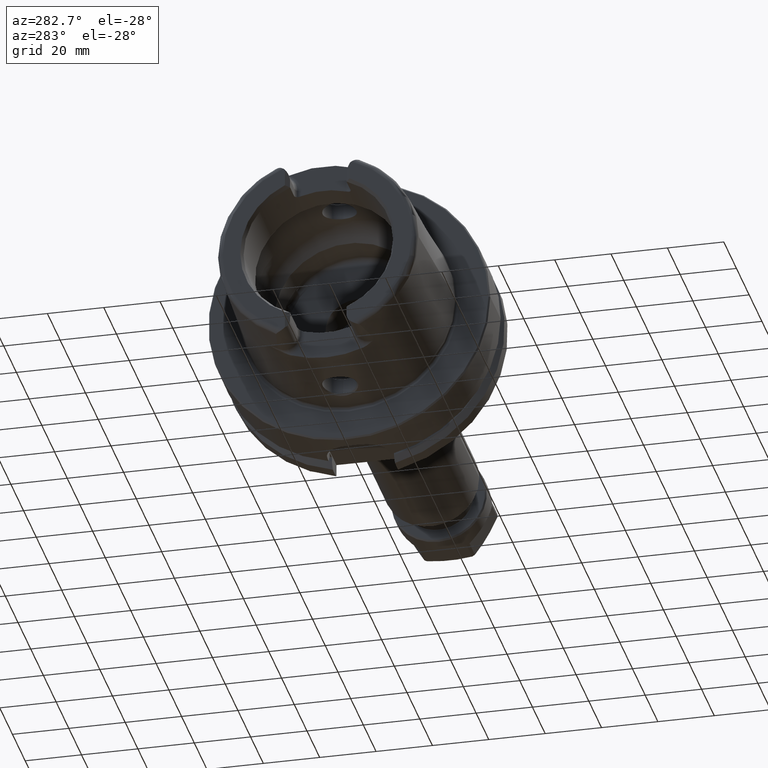
[diagram: clean part render]
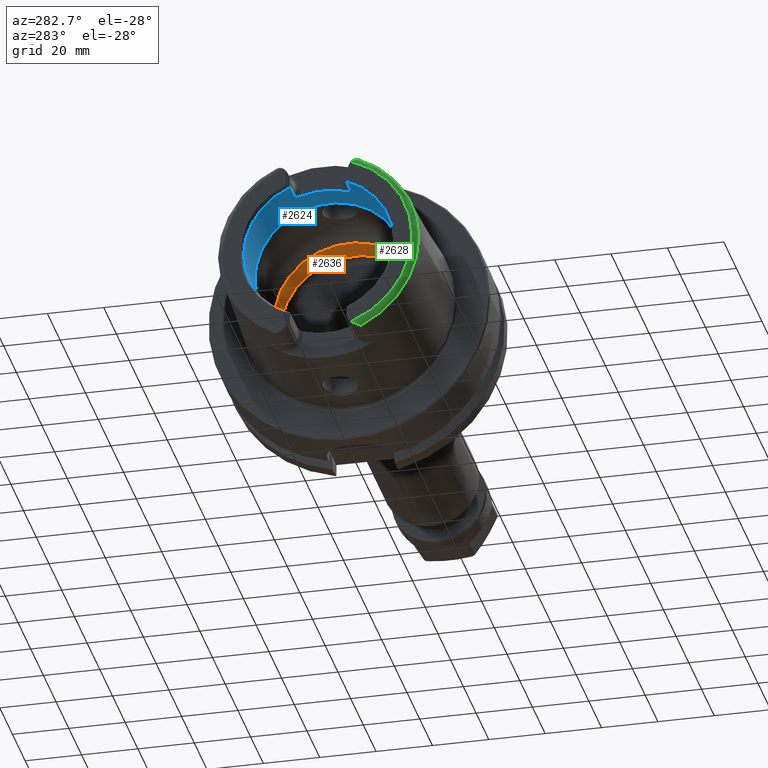
[diagram: same view with three faces highlighted in distinct colors, each labeled with its STEP entity id]
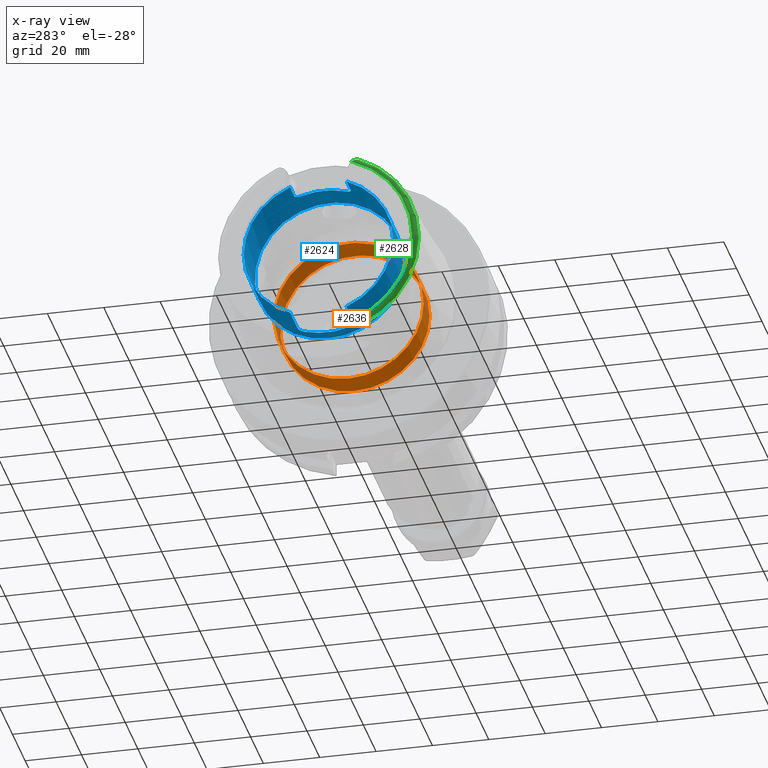
[diagram: x-ray of the same camera — body ghosted, the three highlighted faces saturated]
A machine part, auxiliary view with three faces highlighted in distinct colors.
The next image is the same camera in x-ray (body ghosted, the three faces saturated) — at least one of them is partly hidden behind the body in this view.
Their STEP definitions:

[orange] entity #2636 — the highlighted cylindrical surface (bore or boss wall) has radius 26.5 mm, axis along (-1, 0, 0).
#384=FACE_OUTER_BOUND('',#547,.T.);
#547=EDGE_LOOP('',(#2268,#2269,#2270,#2271,#2272,#2273));
#704=LINE('',#5405,#838);
#838=VECTOR('',#3674,26.5);
#932=CIRCLE('',#2865,26.5);
#933=CIRCLE('',#2866,26.5);
#995=CIRCLE('',#2992,26.5);
#996=CIRCLE('',#2993,26.5);
#1150=VERTEX_POINT('',#4785);
#1151=VERTEX_POINT('',#4786);
#1243=VERTEX_POINT('',#5399);
#1244=VERTEX_POINT('',#5401);
#1444=EDGE_CURVE('',#1150,#1151,#932,.T.);
#1445=EDGE_CURVE('',#1151,#1150,#933,.T.);
#1600=EDGE_CURVE('',#1243,#1244,#995,.T.);
#1601=EDGE_CURVE('',#1244,#1243,#996,.T.);
#1602=EDGE_CURVE('',#1244,#1150,#704,.T.);
#2268=ORIENTED_EDGE('',*,*,#1601,.F.);
#2269=ORIENTED_EDGE('',*,*,#1602,.T.);
#2270=ORIENTED_EDGE('',*,*,#1444,.T.);
#2271=ORIENTED_EDGE('',*,*,#1445,.T.);
#2272=ORIENTED_EDGE('',*,*,#1602,.F.);
#2273=ORIENTED_EDGE('',*,*,#1600,.F.);
#2521=CYLINDRICAL_SURFACE('',#2994,26.5);
#2636=ADVANCED_FACE('',(#384),#2521,.F.);
#2865=AXIS2_PLACEMENT_3D('',#4787,#3361,#3362);
#2866=AXIS2_PLACEMENT_3D('',#4788,#3363,#3364);
#2992=AXIS2_PLACEMENT_3D('',#5402,#3668,#3669);
#2993=AXIS2_PLACEMENT_3D('',#5403,#3670,#3671);
#2994=AXIS2_PLACEMENT_3D('',#5404,#3672,#3673);
#3361=DIRECTION('center_axis',(-1.,0.,0.));
#3362=DIRECTION('ref_axis',(0.,0.,1.));
#3363=DIRECTION('center_axis',(-1.,0.,0.));
#3364=DIRECTION('ref_axis',(0.,0.,1.));
#3668=DIRECTION('center_axis',(-1.,0.,0.));
#3669=DIRECTION('ref_axis',(0.,0.,1.));
#3670=DIRECTION('center_axis',(-1.,0.,0.));
#3671=DIRECTION('ref_axis',(0.,0.,1.));
#3672=DIRECTION('center_axis',(-1.,0.,0.));
#3673=DIRECTION('ref_axis',(0.,1.,0.));
#3674=DIRECTION('',(-1.,0.,0.));
#4785=CARTESIAN_POINT('',(-0.253205655191033,-26.5,3.24531401774049E-15));
#4786=CARTESIAN_POINT('',(-0.253205655191033,-3.24531401774049E-15,-26.5));
#4787=CARTESIAN_POINT('Origin',(-0.253205655191033,0.,0.));
#4788=CARTESIAN_POINT('Origin',(-0.253205655191033,0.,0.));
#5399=CARTESIAN_POINT('',(9.3,-3.24531401774049E-15,-26.5));
#5401=CARTESIAN_POINT('',(9.3,-26.5,3.24531401774049E-15));
#5402=CARTESIAN_POINT('Origin',(9.3,0.,0.));
#5403=CARTESIAN_POINT('Origin',(9.3,0.,0.));
#5404=CARTESIAN_POINT('Origin',(4.52339717240448,0.,0.));
#5405=CARTESIAN_POINT('',(4.52339717240448,-26.5,3.24531401774049E-15));

[blue] entity #2624 — the highlighted cylindrical surface (bore or boss wall) has radius 26.5 mm, axis along (-1, 0, 0).
#134=B_SPLINE_CURVE_WITH_KNOTS('',3,(#5287,#5288,#5289,#5290,#5291,#5292,
#5293,#5294,#5295,#5296),.UNSPECIFIED.,.F.,.F.,(4,2,2,2,4),(0.307245873696209,
0.387318131676521,0.467390389656833,0.542677307505841,0.617964225354849),
 .UNSPECIFIED.);
#135=B_SPLINE_CURVE_WITH_KNOTS('',3,(#5305,#5306,#5307,#5308,#5309,#5310,
#5311,#5312,#5313,#5314),.UNSPECIFIED.,.F.,.F.,(4,2,2,2,4),(0.61796422535485,
0.694491364966707,0.771018504578565,0.849854597041439,0.928690689504313),
 .UNSPECIFIED.);
#136=B_SPLINE_CURVE_WITH_KNOTS('',3,(#5323,#5324,#5325,#5326,#5327,#5328,
#5329,#5330,#5331,#5332),.UNSPECIFIED.,.F.,.F.,(4,2,2,2,4),(0.617964225354849,
0.693251143203857,0.768538061052865,0.848610319033177,0.928682577013489),
 .UNSPECIFIED.);
#137=B_SPLINE_CURVE_WITH_KNOTS('',3,(#5346,#5347,#5348,#5349,#5350,#5351,
#5352,#5353,#5354,#5355),.UNSPECIFIED.,.F.,.F.,(4,2,2,2,4),(0.307245873696209,
0.387318131676521,0.467390389656833,0.542677307505841,0.617964225354849),
 .UNSPECIFIED.);
#372=FACE_OUTER_BOUND('',#533,.T.);
#533=EDGE_LOOP('',(#2205,#2206,#2207,#2208,#2209,#2210,#2211,#2212,#2213,
#2214,#2215,#2216,#2217,#2218,#2219,#2220,#2221));
#627=LINE('',#4054,#761);
#633=LINE('',#4148,#767);
#639=LINE('',#4164,#773);
#643=LINE('',#4230,#777);
#702=LINE('',#5370,#836);
#761=VECTOR('',#3253,10.);
#767=VECTOR('',#3283,10.);
#773=VECTOR('',#3297,10.);
#777=VECTOR('',#3321,10.);
#836=VECTOR('',#3618,26.5);
#975=CIRCLE('',#2954,26.5);
#980=CIRCLE('',#2965,26.5);
#981=CIRCLE('',#2967,26.5);
#982=CIRCLE('',#2968,26.5);
#983=CIRCLE('',#2969,26.5);
#984=CIRCLE('',#2970,26.5);
#985=CIRCLE('',#2971,26.5);
#1087=VERTEX_POINT('',#4044);
#1090=VERTEX_POINT('',#4052);
#1099=VERTEX_POINT('',#4101);
#1106=VERTEX_POINT('',#4147);
#1109=VERTEX_POINT('',#4154);
#1112=VERTEX_POINT('',#4162);
#1119=VERTEX_POINT('',#4197);
#1124=VERTEX_POINT('',#4229);
#1229=VERTEX_POINT('',#5285);
#1231=VERTEX_POINT('',#5304);
#1233=VERTEX_POINT('',#5322);
#1234=VERTEX_POINT('',#5339);
#1236=VERTEX_POINT('',#5366);
#1237=VERTEX_POINT('',#5367);
#1238=VERTEX_POINT('',#5369);
#1365=EDGE_CURVE('',#1087,#1090,#627,.T.);
#1383=EDGE_CURVE('',#1106,#1099,#633,.T.);
#1391=EDGE_CURVE('',#1109,#1112,#639,.T.);
#1405=EDGE_CURVE('',#1124,#1119,#643,.T.);
#1562=EDGE_CURVE('',#1229,#1112,#134,.T.);
#1566=EDGE_CURVE('',#1124,#1231,#135,.T.);
#1571=EDGE_CURVE('',#1106,#1233,#136,.T.);
#1575=EDGE_CURVE('',#1234,#1233,#975,.T.);
#1579=EDGE_CURVE('',#1234,#1090,#137,.T.);
#1583=EDGE_CURVE('',#1229,#1231,#980,.T.);
#1584=EDGE_CURVE('',#1236,#1237,#981,.T.);
#1585=EDGE_CURVE('',#1236,#1238,#702,.T.);
#1586=EDGE_CURVE('',#1109,#1238,#982,.T.);
#1587=EDGE_CURVE('',#1087,#1119,#983,.T.);
#1588=EDGE_CURVE('',#1238,#1099,#984,.T.);
#1589=EDGE_CURVE('',#1237,#1236,#985,.T.);
#2205=ORIENTED_EDGE('',*,*,#1584,.F.);
#2206=ORIENTED_EDGE('',*,*,#1585,.T.);
#2207=ORIENTED_EDGE('',*,*,#1586,.F.);
#2208=ORIENTED_EDGE('',*,*,#1391,.T.);
#2209=ORIENTED_EDGE('',*,*,#1562,.F.);
#2210=ORIENTED_EDGE('',*,*,#1583,.T.);
#2211=ORIENTED_EDGE('',*,*,#1566,.F.);
#2212=ORIENTED_EDGE('',*,*,#1405,.T.);
#2213=ORIENTED_EDGE('',*,*,#1587,.F.);
#2214=ORIENTED_EDGE('',*,*,#1365,.T.);
#2215=ORIENTED_EDGE('',*,*,#1579,.F.);
#2216=ORIENTED_EDGE('',*,*,#1575,.T.);
#2217=ORIENTED_EDGE('',*,*,#1571,.F.);
#2218=ORIENTED_EDGE('',*,*,#1383,.T.);
#2219=ORIENTED_EDGE('',*,*,#1588,.F.);
#2220=ORIENTED_EDGE('',*,*,#1585,.F.);
#2221=ORIENTED_EDGE('',*,*,#1589,.F.);
#2519=CYLINDRICAL_SURFACE('',#2966,26.5);
#2624=ADVANCED_FACE('',(#372),#2519,.F.);
#2954=AXIS2_PLACEMENT_3D('',#5340,#3588,#3589);
#2965=AXIS2_PLACEMENT_3D('',#5364,#3612,#3613);
#2966=AXIS2_PLACEMENT_3D('',#5365,#3614,#3615);
#2967=AXIS2_PLACEMENT_3D('',#5368,#3616,#3617);
#2968=AXIS2_PLACEMENT_3D('',#5371,#3619,#3620);
#2969=AXIS2_PLACEMENT_3D('',#5372,#3621,#3622);
#2970=AXIS2_PLACEMENT_3D('',#5373,#3623,#3624);
#2971=AXIS2_PLACEMENT_3D('',#5374,#3625,#3626);
#3253=DIRECTION('',(1.,0.,0.));
#3283=DIRECTION('',(-1.,0.,0.));
#3297=DIRECTION('',(1.,0.,0.));
#3321=DIRECTION('',(-1.,0.,0.));
#3588=DIRECTION('center_axis',(-1.,0.,0.));
#3589=DIRECTION('ref_axis',(0.,1.,0.));
#3612=DIRECTION('center_axis',(-1.,0.,0.));
#3613=DIRECTION('ref_axis',(0.,1.,0.));
#3614=DIRECTION('center_axis',(-1.,0.,0.));
#3615=DIRECTION('ref_axis',(0.,1.,0.));
#3616=DIRECTION('center_axis',(-1.,0.,0.));
#3617=DIRECTION('ref_axis',(0.,0.,1.));
#3618=DIRECTION('',(-1.,0.,0.));
#3619=DIRECTION('center_axis',(1.,0.,0.));
#3620=DIRECTION('ref_axis',(0.,-1.,0.));
#3621=DIRECTION('center_axis',(1.,0.,0.));
#3622=DIRECTION('ref_axis',(0.,-1.,0.));
#3623=DIRECTION('center_axis',(1.,0.,0.));
#3624=DIRECTION('ref_axis',(0.,-1.,0.));
#3625=DIRECTION('center_axis',(-1.,0.,0.));
#3626=DIRECTION('ref_axis',(0.,0.,1.));
#4044=CARTESIAN_POINT('',(-48.5,10.01,-24.5367051577835));
#4052=CARTESIAN_POINT('',(-37.,10.01,-24.5367051577835));
#4054=CARTESIAN_POINT('',(-40.2903629710818,10.01,-24.5367051577835));
#4101=CARTESIAN_POINT('',(-48.5,-10.01,-24.5367051577835));
#4147=CARTESIAN_POINT('',(-37.,-10.01,-24.5367051577835));
#4148=CARTESIAN_POINT('',(-40.2903629710818,-10.01,-24.5367051577835));
#4154=CARTESIAN_POINT('',(-48.5,-10.01,24.5367051577835));
#4162=CARTESIAN_POINT('',(-42.,-10.01,24.5367051577835));
#4164=CARTESIAN_POINT('',(-40.2903629710818,-10.01,24.5367051577835));
#4197=CARTESIAN_POINT('',(-48.5,10.01,24.5367051577835));
#4229=CARTESIAN_POINT('',(-42.,10.01,24.5367051577835));
#4230=CARTESIAN_POINT('',(-40.2903629710818,10.01,24.5367051577835));
#5285=CARTESIAN_POINT('',(-40.,-8.01,25.2604414054862));
#5287=CARTESIAN_POINT('Ctrl Pts',(-40.,-8.01,25.2604414054862));
#5288=CARTESIAN_POINT('Ctrl Pts',(-40.,-8.26442271458071,25.1797648285777));
#5289=CARTESIAN_POINT('Ctrl Pts',(-40.0513332778729,-8.53503831367686,25.0892968127514));
#5290=CARTESIAN_POINT('Ctrl Pts',(-40.2604388709541,-9.03317850506395,24.9142806373643));
#5291=CARTESIAN_POINT('Ctrl Pts',(-40.4182028025644,-9.2607746884821,24.8299262887475));
#5292=CARTESIAN_POINT('Ctrl Pts',(-40.7762398849713,-9.61038047170956,24.6966285655713));
#5293=CARTESIAN_POINT('Ctrl Pts',(-40.996584045901,-9.75993653512726,24.6374761492843));
#5294=CARTESIAN_POINT('Ctrl Pts',(-41.4829332858843,-9.95981108540838,24.557356442995));
#5295=CARTESIAN_POINT('Ctrl Pts',(-41.74904360717,-10.01,24.5367051577835));
#5296=CARTESIAN_POINT('Ctrl Pts',(-42.,-10.01,24.5367051577835));
#5304=CARTESIAN_POINT('',(-40.,8.01,25.2604414054862));
#5305=CARTESIAN_POINT('Ctrl Pts',(-42.,10.01,24.5367051577835));
#5306=CARTESIAN_POINT('Ctrl Pts',(-41.7449095346271,10.01,24.5367051577835));
#5307=CARTESIAN_POINT('Ctrl Pts',(-41.4747619014646,9.95816285425487,24.5580391842641));
#5308=CARTESIAN_POINT('Ctrl Pts',(-40.9823460284033,9.75229566196282,24.640515927451));
#5309=CARTESIAN_POINT('Ctrl Pts',(-40.7599680829949,9.59839520774108,24.7013267120605));
#5310=CARTESIAN_POINT('Ctrl Pts',(-40.4063494382929,9.24477656303909,24.8358806096526));
#5311=CARTESIAN_POINT('Ctrl Pts',(-40.2529543645221,9.01930384320105,24.9192727261742));
#5312=CARTESIAN_POINT('Ctrl Pts',(-40.049776768453,8.52719637786957,25.0919293188873));
#5313=CARTESIAN_POINT('Ctrl Pts',(-40.,8.26049490494288,25.1810103236462));
#5314=CARTESIAN_POINT('Ctrl Pts',(-40.,8.01,25.2604414054862));
#5322=CARTESIAN_POINT('',(-35.,-8.01,-25.2604414054862));
#5323=CARTESIAN_POINT('Ctrl Pts',(-37.,-10.01,-24.5367051577835));
#5324=CARTESIAN_POINT('Ctrl Pts',(-36.74904360717,-10.01,-24.5367051577835));
#5325=CARTESIAN_POINT('Ctrl Pts',(-36.4829332858843,-9.95981108540838,-24.557356442995));
#5326=CARTESIAN_POINT('Ctrl Pts',(-35.9965840459011,-9.75993653512726,-24.6374761492843));
#5327=CARTESIAN_POINT('Ctrl Pts',(-35.7762398849713,-9.61038047170956,-24.6966285655713));
#5328=CARTESIAN_POINT('Ctrl Pts',(-35.4182028025644,-9.2607746884821,-24.8299262887475));
#5329=CARTESIAN_POINT('Ctrl Pts',(-35.2604388709541,-9.03317850506395,-24.9142806373643));
#5330=CARTESIAN_POINT('Ctrl Pts',(-35.0513332778729,-8.53503831367686,-25.0892968127514));
#5331=CARTESIAN_POINT('Ctrl Pts',(-35.,-8.26442271458071,-25.1797648285777));
#5332=CARTESIAN_POINT('Ctrl Pts',(-35.,-8.01,-25.2604414054862));
#5339=CARTESIAN_POINT('',(-35.,8.01,-25.2604414054862));
#5340=CARTESIAN_POINT('Origin',(-35.,0.,0.));
#5346=CARTESIAN_POINT('Ctrl Pts',(-35.,8.01,-25.2604414054862));
#5347=CARTESIAN_POINT('Ctrl Pts',(-35.,8.26442271458071,-25.1797648285777));
#5348=CARTESIAN_POINT('Ctrl Pts',(-35.0513332778729,8.53503831367686,-25.0892968127514));
#5349=CARTESIAN_POINT('Ctrl Pts',(-35.2604388709541,9.03317850506395,-24.9142806373643));
#5350=CARTESIAN_POINT('Ctrl Pts',(-35.4182028025644,9.2607746884821,-24.8299262887475));
#5351=CARTESIAN_POINT('Ctrl Pts',(-35.7762398849713,9.61038047170956,-24.6966285655713));
#5352=CARTESIAN_POINT('Ctrl Pts',(-35.9965840459011,9.75993653512726,-24.6374761492843));
#5353=CARTESIAN_POINT('Ctrl Pts',(-36.4829332858843,9.95981108540838,-24.557356442995));
#5354=CARTESIAN_POINT('Ctrl Pts',(-36.74904360717,10.01,-24.5367051577835));
#5355=CARTESIAN_POINT('Ctrl Pts',(-37.,10.01,-24.5367051577835));
#5364=CARTESIAN_POINT('Origin',(-40.,0.,0.));
#5365=CARTESIAN_POINT('Origin',(-40.2903629710818,0.,0.));
#5366=CARTESIAN_POINT('',(-30.5807259421637,-26.5,3.24531401774049E-15));
#5367=CARTESIAN_POINT('',(-30.5807259421637,-3.24531401774049E-15,-26.5));
#5368=CARTESIAN_POINT('Origin',(-30.5807259421637,0.,0.));
#5369=CARTESIAN_POINT('',(-48.5,-26.5,3.24531401774049E-15));
#5370=CARTESIAN_POINT('',(-40.2903629710818,-26.5,3.24531401774049E-15));
#5371=CARTESIAN_POINT('Origin',(-48.5,0.,0.));
#5372=CARTESIAN_POINT('Origin',(-48.5,0.,0.));
#5373=CARTESIAN_POINT('Origin',(-48.5,0.,0.));
#5374=CARTESIAN_POINT('Origin',(-30.5807259421637,0.,0.));

[green] entity #2628 — the highlighted toroidal blend (fillet) surface has major radius 33.6002 mm and minor (blend) radius 2 mm.
#87=B_SPLINE_CURVE_WITH_KNOTS('',3,(#4133,#4134,#4135,#4136,#4137,#4138,
#4139,#4140,#4141,#4142,#4143,#4144),.UNSPECIFIED.,.F.,.F.,(4,2,2,2,2,4),
(-0.330531435638015,-0.267908000768776,-0.159978118105109,-0.0786368985358203,
-0.0319888850382474,0.),.UNSPECIFIED.);
#88=B_SPLINE_CURVE_WITH_KNOTS('',3,(#4169,#4170,#4171,#4172,#4173,#4174,
#4175,#4176,#4177,#4178,#4179,#4180),.UNSPECIFIED.,.F.,.F.,(4,2,2,2,2,4),
(-0.744571126726488,-0.701342830888658,-0.656522678464695,-0.531122919946982,
-0.40678456724179,-0.320835419118985),.UNSPECIFIED.);
#252=TOROIDAL_SURFACE('',#2977,33.6001839277785,2.);
#376=FACE_OUTER_BOUND('',#537,.T.);
#537=EDGE_LOOP('',(#2236,#2237,#2238,#2239,#2240));
#922=CIRCLE('',#2851,35.5976786130245);
#926=CIRCLE('',#2855,35.5976786130245);
#988=CIRCLE('',#2978,33.6001839277785);
#1104=VERTEX_POINT('',#4113);
#1105=VERTEX_POINT('',#4132);
#1113=VERTEX_POINT('',#4166);
#1114=VERTEX_POINT('',#4168);
#1129=VERTEX_POINT('',#4387);
#1381=EDGE_CURVE('',#1105,#1104,#87,.T.);
#1393=EDGE_CURVE('',#1114,#1113,#88,.T.);
#1413=EDGE_CURVE('',#1129,#1104,#922,.T.);
#1425=EDGE_CURVE('',#1114,#1129,#926,.T.);
#1592=EDGE_CURVE('',#1113,#1105,#988,.T.);
#2236=ORIENTED_EDGE('',*,*,#1393,.T.);
#2237=ORIENTED_EDGE('',*,*,#1592,.T.);
#2238=ORIENTED_EDGE('',*,*,#1381,.T.);
#2239=ORIENTED_EDGE('',*,*,#1413,.F.);
#2240=ORIENTED_EDGE('',*,*,#1425,.F.);
#2628=ADVANCED_FACE('',(#376),#252,.T.);
#2851=AXIS2_PLACEMENT_3D('',#4389,#3329,#3330);
#2855=AXIS2_PLACEMENT_3D('',#4497,#3337,#3338);
#2977=AXIS2_PLACEMENT_3D('',#5380,#3637,#3638);
#2978=AXIS2_PLACEMENT_3D('',#5381,#3639,#3640);
#3329=DIRECTION('center_axis',(1.,0.,0.));
#3330=DIRECTION('ref_axis',(0.,0.,-1.));
#3337=DIRECTION('center_axis',(1.,0.,0.));
#3338=DIRECTION('ref_axis',(0.,0.,-1.));
#3637=DIRECTION('center_axis',(1.,0.,0.));
#3638=DIRECTION('ref_axis',(0.,0.,-1.));
#3639=DIRECTION('center_axis',(1.,0.,0.));
#3640=DIRECTION('ref_axis',(0.,0.,-1.));
#4113=CARTESIAN_POINT('',(-48.1000748840304,-15.0787152148571,-32.2463497175327));
#4132=CARTESIAN_POINT('',(-50.,-12.0743049948301,-31.355757348091));
#4133=CARTESIAN_POINT('Ctrl Pts',(-50.,-12.0743049948301,-31.355757348091));
#4134=CARTESIAN_POINT('Ctrl Pts',(-50.,-12.285838123051,-31.5051926299063));
#4135=CARTESIAN_POINT('Ctrl Pts',(-49.9653696826563,-12.5170331398668,-31.6430588255455));
#4136=CARTESIAN_POINT('Ctrl Pts',(-49.7810065498998,-13.1911222585012,-31.9692156023965));
#4137=CARTESIAN_POINT('Ctrl Pts',(-49.5806767805336,-13.6194685503756,-32.0969374367804));
#4138=CARTESIAN_POINT('Ctrl Pts',(-49.1716377200869,-14.2730899346346,-32.2192774131036));
#4139=CARTESIAN_POINT('Ctrl Pts',(-48.9774936618895,-14.5201969661755,-32.2395201073332));
#4140=CARTESIAN_POINT('Ctrl Pts',(-48.6675943633754,-14.8125911006811,-32.2505512851489));
#4141=CARTESIAN_POINT('Ctrl Pts',(-48.5398374959923,-14.912197389574,-32.2504544601106));
#4142=CARTESIAN_POINT('Ctrl Pts',(-48.3063803700173,-15.0305209025153,-32.2482139663407));
#4143=CARTESIAN_POINT('Ctrl Pts',(-48.2058276135777,-15.0650786147019,-32.2468774553032));
#4144=CARTESIAN_POINT('Ctrl Pts',(-48.1000748840303,-15.0787152148571,-32.2463497175327));
#4166=CARTESIAN_POINT('',(-50.,-12.0743049948301,31.355757348091));
#4168=CARTESIAN_POINT('',(-48.1000748840304,-15.0787152148571,32.2463497175327));
#4169=CARTESIAN_POINT('Ctrl Pts',(-48.1000748840303,-15.078715214857,32.2463497175327));
#4170=CARTESIAN_POINT('Ctrl Pts',(-48.2106037175751,-15.0644627457708,32.2469012894916));
#4171=CARTESIAN_POINT('Ctrl Pts',(-48.3154292138325,-15.0273539899824,32.2483385926998));
#4172=CARTESIAN_POINT('Ctrl Pts',(-48.5163157198425,-14.9224481921473,32.2501843906849));
#4173=CARTESIAN_POINT('Ctrl Pts',(-48.6121978837475,-14.8534224082597,32.2504380645671));
#4174=CARTESIAN_POINT('Ctrl Pts',(-48.9452641842069,-14.5689466462259,32.2439376039327));
#4175=CARTESIAN_POINT('Ctrl Pts',(-49.1880723127851,-14.2607780319836,32.2227822574559));
#4176=CARTESIAN_POINT('Ctrl Pts',(-49.6101150709732,-13.5547183211213,32.0774653757186));
#4177=CARTESIAN_POINT('Ctrl Pts',(-49.7793847368059,-13.1765954395989,31.957165019384));
#4178=CARTESIAN_POINT('Ctrl Pts',(-49.9574602860506,-12.5580264083439,31.6658578550016));
#4179=CARTESIAN_POINT('Ctrl Pts',(-50.,-12.3091419271059,31.5216553492714));
#4180=CARTESIAN_POINT('Ctrl Pts',(-50.,-12.0743049948301,31.355757348091));
#4387=CARTESIAN_POINT('',(-48.1000748840304,-35.5976786130245,-4.35945831705167E-15));
#4389=CARTESIAN_POINT('Origin',(-48.1000748840304,0.,0.));
#4497=CARTESIAN_POINT('Origin',(-48.1000748840304,0.,0.));
#5380=CARTESIAN_POINT('Origin',(-48.,0.,0.));
#5381=CARTESIAN_POINT('Origin',(-50.,0.,0.));